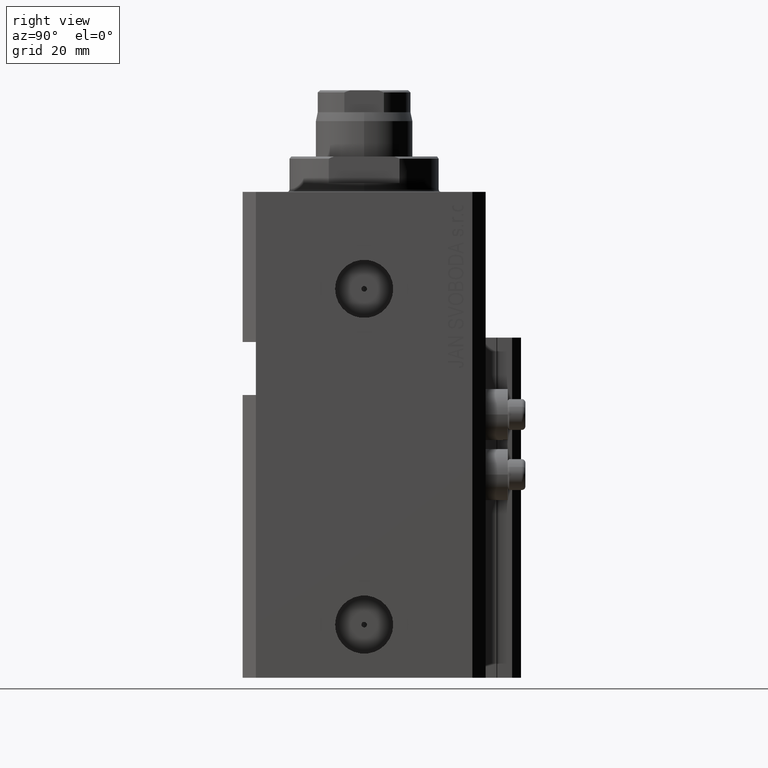
[diagram: clean part render]
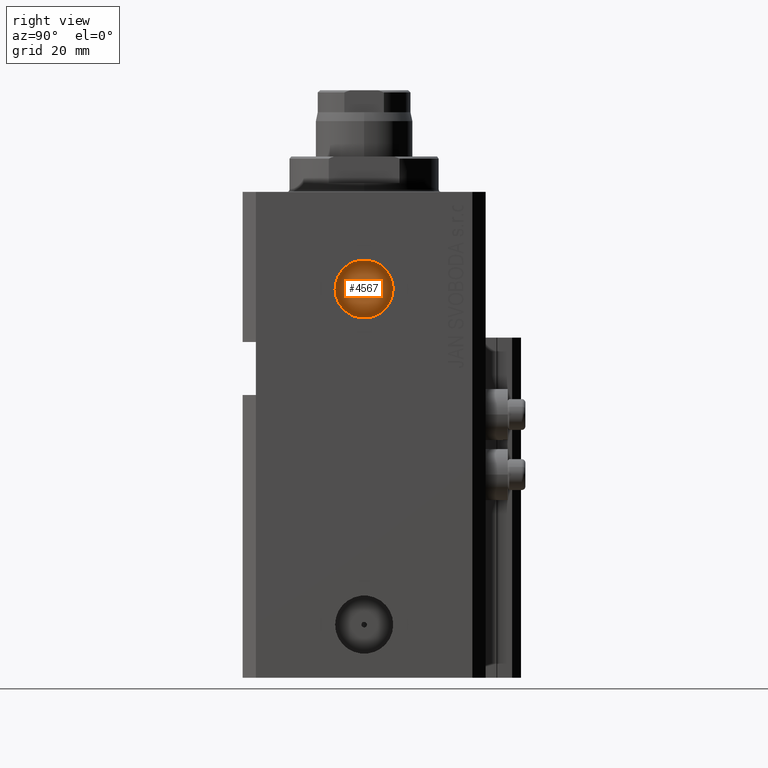
[diagram: same view with one face highlighted and labeled with its STEP entity id]
A machine part, right view. The second image highlights one B-rep face of the part: STEP entity #4567.
In plain terms, the highlighted planar face has unit normal (1, -0, 0).
Its self-contained STEP definition (entity closure, byte-faithful):
#1368 = CIRCLE ( 'NONE', #39160, 0.6249999999999987788 ) ;
#1864 = ORIENTED_EDGE ( 'NONE', *, *, #33972, .T. ) ;
#2260 = CARTESIAN_POINT ( 'NONE',  ( 24.40000000000025437, -3.255942524141206186E-13, -22.00000000000000000 ) ) ;
#3040 = DIRECTION ( 'NONE',  ( 1.000000000000000000, -1.334402673828349134E-14, 0.000000000000000000 ) ) ;
#3649 = EDGE_CURVE ( 'NONE', #7843, #25126, #1368, .T. ) ;
#4567 = ADVANCED_FACE ( 'NONE', ( #13140, #28243 ), #24007, .T. ) ;
#6606 = CIRCLE ( 'NONE', #20959, 6.580000000000002736 ) ;
#6613 = CARTESIAN_POINT ( 'NONE',  ( 24.40000000000025437, -3.255942524141206186E-13, -22.00000000000000000 ) ) ;
#7429 = CARTESIAN_POINT ( 'NONE',  ( 24.40000000000025437, -3.255942524141206186E-13, -22.00000000000000000 ) ) ;
#7843 = VERTEX_POINT ( 'NONE', #13059 ) ;
#9214 = ORIENTED_EDGE ( 'NONE', *, *, #45519, .T. ) ;
#10475 = AXIS2_PLACEMENT_3D ( 'NONE', #21380, #42693, #42930 ) ;
#11565 = AXIS2_PLACEMENT_3D ( 'NONE', #6613, #3040, #35028 ) ;
#13059 = CARTESIAN_POINT ( 'NONE',  ( 24.40000000000024727, -0.6250000000003244072, -22.00000000000000000 ) ) ;
#13140 = FACE_BOUND ( 'NONE', #15396, .T. ) ;
#15396 = EDGE_LOOP ( 'NONE', ( #24335, #16633 ) ) ;
#16633 = ORIENTED_EDGE ( 'NONE', *, *, #3649, .F. ) ;
#17720 = AXIS2_PLACEMENT_3D ( 'NONE', #7429, #28716, #43168 ) ;
#18730 = EDGE_CURVE ( 'NONE', #25126, #7843, #31974, .T. ) ;
#19998 = CIRCLE ( 'NONE', #17720, 6.580000000000002736 ) ;
#20670 = VERTEX_POINT ( 'NONE', #35795 ) ;
#20959 = AXIS2_PLACEMENT_3D ( 'NONE', #34851, #23475, #37941 ) ;
#21380 = CARTESIAN_POINT ( 'NONE',  ( 24.40000000000025437, -3.255942524141206186E-13, -22.00000000000000000 ) ) ;
#23097 = DIRECTION ( 'NONE',  ( 1.000000000000000000, -1.334402673828349134E-14, 0.000000000000000000 ) ) ;
#23475 = DIRECTION ( 'NONE',  ( 1.000000000000000000, -1.334402673828349134E-14, 0.000000000000000000 ) ) ;
#23563 = DIRECTION ( 'NONE',  ( 1.110223024625158749E-14, 1.000000000000000000, 0.000000000000000000 ) ) ;
#24007 = PLANE ( 'NONE',  #10475 ) ;
#24335 = ORIENTED_EDGE ( 'NONE', *, *, #18730, .F. ) ;
#25126 = VERTEX_POINT ( 'NONE', #36955 ) ;
#26690 = CARTESIAN_POINT ( 'NONE',  ( 24.40000000000034319, 6.579999999999677662, -22.00000000000000000 ) ) ;
#28243 = FACE_OUTER_BOUND ( 'NONE', #35927, .T. ) ;
#28716 = DIRECTION ( 'NONE',  ( 1.000000000000000000, -1.334402673828349134E-14, 0.000000000000000000 ) ) ;
#31974 = CIRCLE ( 'NONE', #11565, 0.6249999999999987788 ) ;
#33972 = EDGE_CURVE ( 'NONE', #20670, #39171, #19998, .T. ) ;
#34851 = CARTESIAN_POINT ( 'NONE',  ( 24.40000000000025437, -3.255942524141206186E-13, -22.00000000000000000 ) ) ;
#35028 = DIRECTION ( 'NONE',  ( 1.110223024625158749E-14, 1.000000000000000000, 0.000000000000000000 ) ) ;
#35795 = CARTESIAN_POINT ( 'NONE',  ( 24.40000000000016911, -6.580000000000327809, -22.00000000000000000 ) ) ;
#35927 = EDGE_LOOP ( 'NONE', ( #9214, #1864 ) ) ;
#36955 = CARTESIAN_POINT ( 'NONE',  ( 24.40000000000026148, 0.6249999999996732614, -22.00000000000000000 ) ) ;
#37941 = DIRECTION ( 'NONE',  ( 1.318178933113074700E-14, 1.000000000000000000, 0.000000000000000000 ) ) ;
#39160 = AXIS2_PLACEMENT_3D ( 'NONE', #2260, #23097, #23563 ) ;
#39171 = VERTEX_POINT ( 'NONE', #26690 ) ;
#42693 = DIRECTION ( 'NONE',  ( 1.000000000000000000, -1.334402673828349134E-14, 0.000000000000000000 ) ) ;
#42930 = DIRECTION ( 'NONE',  ( 1.334402673828349134E-14, 1.000000000000000000, 0.000000000000000000 ) ) ;
#43168 = DIRECTION ( 'NONE',  ( 1.318178933113074700E-14, 1.000000000000000000, 0.000000000000000000 ) ) ;
#45519 = EDGE_CURVE ( 'NONE', #39171, #20670, #6606, .T. ) ;